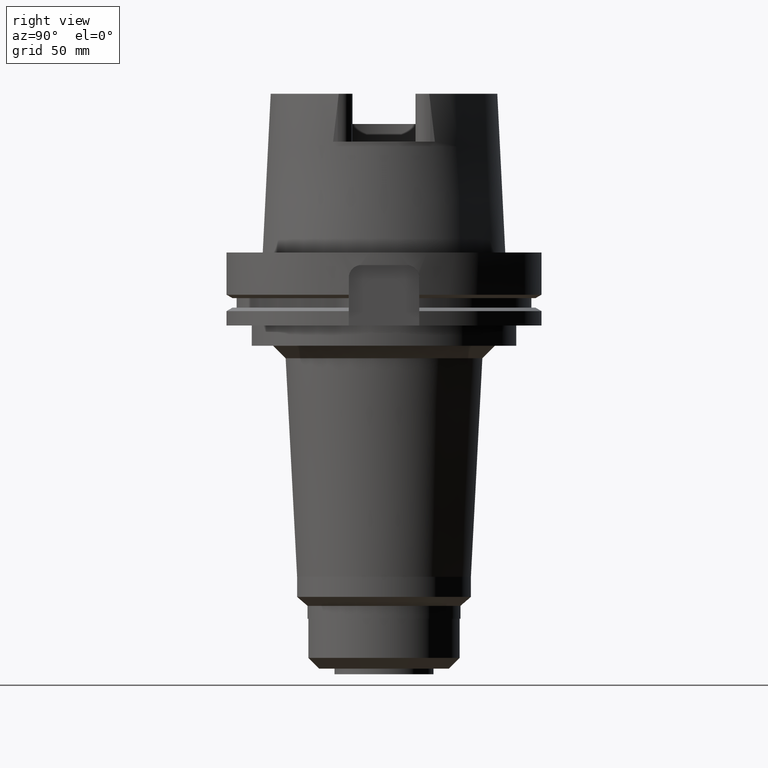
[diagram: clean part render]
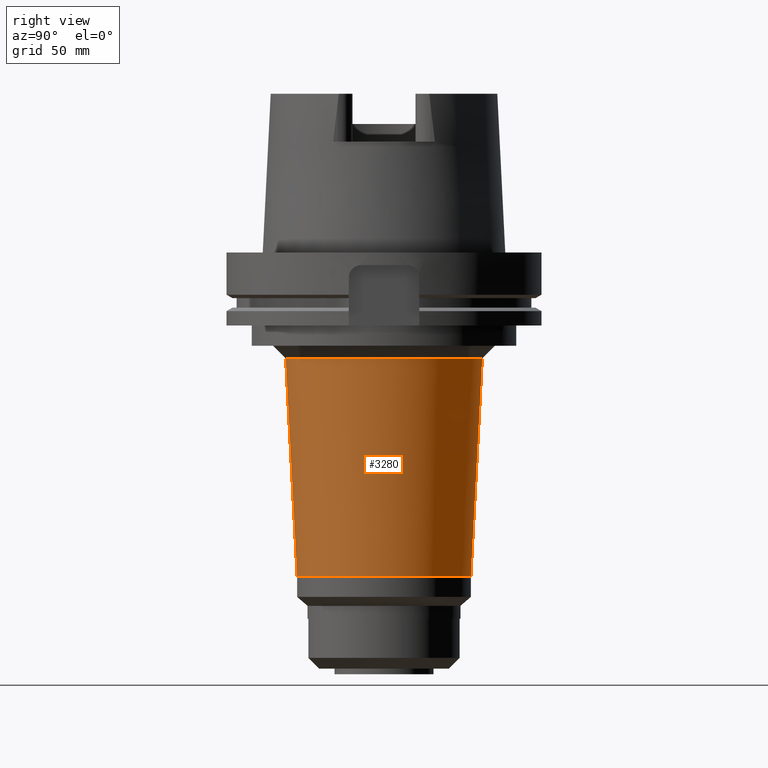
[diagram: same view with one face highlighted and labeled with its STEP entity id]
A machine part, right view. The second image highlights one B-rep face of the part: STEP entity #3280.
In plain terms, the highlighted conical surface has half-angle 3 deg.
Its self-contained STEP definition (entity closure, byte-faithful):
#963=DIRECTION('',(0.E0,5.233595624295E-2,-9.986295347546E-1));
#964=VECTOR('',#963,8.681898239802E1);
#965=CARTESIAN_POINT('',(0.E0,-3.904375446384E1,-4.2E1));
#966=LINE('',#965,#964);
#978=DIRECTION('',(0.E0,-5.233595624295E-2,-9.986295347546E-1));
#979=VECTOR('',#978,8.681898239802E1);
#980=CARTESIAN_POINT('',(0.E0,3.904375446384E1,-4.2E1));
#981=LINE('',#980,#979);
#985=CARTESIAN_POINT('',(0.E0,0.E0,-1.287E2));
#986=DIRECTION('',(0.E0,0.E0,-1.E0));
#987=DIRECTION('',(0.E0,1.E0,0.E0));
#988=AXIS2_PLACEMENT_3D('',#985,#986,#987);
#993=CARTESIAN_POINT('',(0.E0,0.E0,-4.2E1));
#994=DIRECTION('',(0.E0,0.E0,1.E0));
#995=DIRECTION('',(0.E0,-1.E0,0.E0));
#996=AXIS2_PLACEMENT_3D('',#993,#994,#995);
#2273=CARTESIAN_POINT('',(0.E0,3.45E1,-1.287E2));
#2274=VERTEX_POINT('',#2273);
#2275=CARTESIAN_POINT('',(0.E0,-3.45E1,-1.287E2));
#2276=VERTEX_POINT('',#2275);
#2277=CARTESIAN_POINT('',(0.E0,3.904375446384E1,-4.2E1));
#2278=VERTEX_POINT('',#2277);
#2279=CARTESIAN_POINT('',(0.E0,-3.904375446384E1,-4.2E1));
#2280=VERTEX_POINT('',#2279);
#3268=CARTESIAN_POINT('',(0.E0,0.E0,-8.535E1));
#3269=DIRECTION('',(0.E0,0.E0,1.E0));
#3270=DIRECTION('',(0.E0,1.E0,0.E0));
#3271=AXIS2_PLACEMENT_3D('',#3268,#3269,#3270);
#3272=CONICAL_SURFACE('',#3271,3.677187723192E1,3.E0);
#3273=ORIENTED_EDGE('',*,*,#3258,.T.);
#3274=ORIENTED_EDGE('',*,*,#3235,.T.);
#3275=ORIENTED_EDGE('',*,*,#3262,.F.);
#3277=ORIENTED_EDGE('',*,*,#3276,.T.);
#3278=EDGE_LOOP('',(#3273,#3274,#3275,#3277));
#3279=FACE_OUTER_BOUND('',#3278,.F.);
#989=CIRCLE('',#988,3.45E1);
#997=CIRCLE('',#996,3.904375446384E1);
#3235=EDGE_CURVE('',#2274,#2276,#989,.T.);
#3258=EDGE_CURVE('',#2278,#2274,#981,.T.);
#3262=EDGE_CURVE('',#2280,#2276,#966,.T.);
#3276=EDGE_CURVE('',#2280,#2278,#997,.T.);
#3280=ADVANCED_FACE('',(#3279),#3272,.T.);